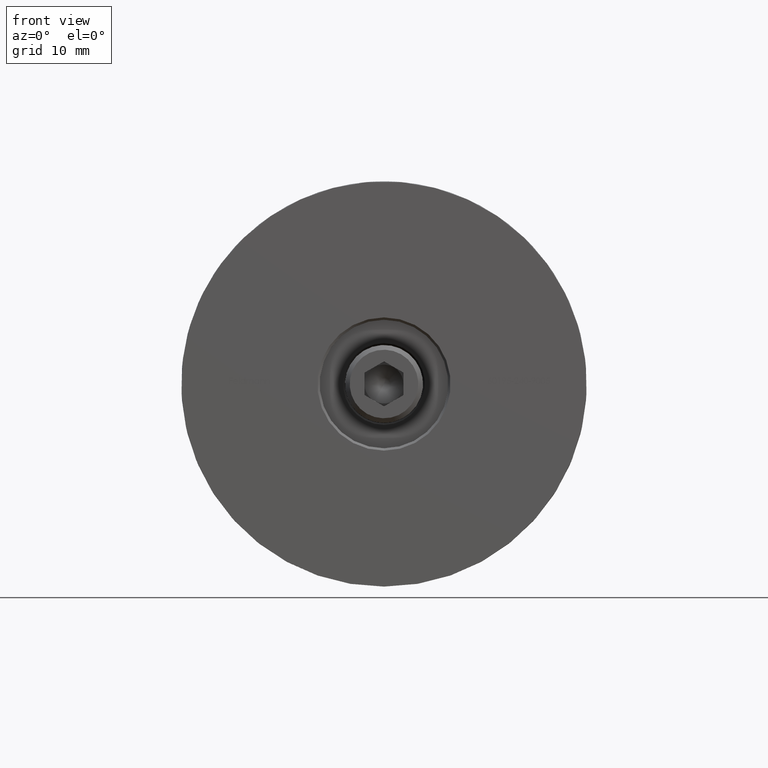
[diagram: clean part render]
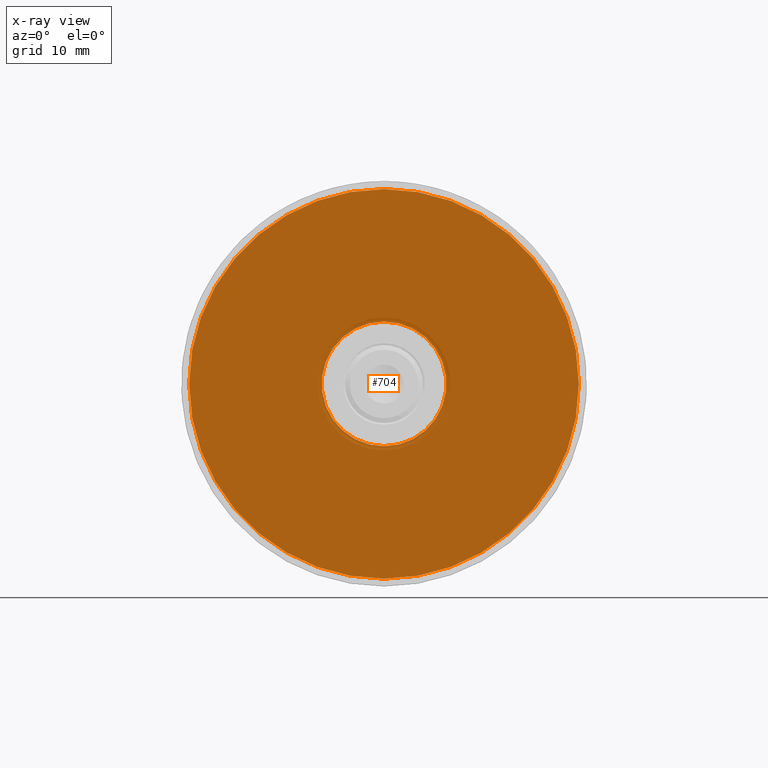
[diagram: x-ray — body ghosted, one internal face saturated and labeled with its STEP entity id]
A machine part, front view, then the same camera in x-ray: the body is ghosted and one INTERNAL B-rep face — a face not visible from any outside direction — is saturated and labeled: STEP entity #704.
In plain terms, the highlighted planar face has unit normal (0, -1, 0).
Its self-contained STEP definition (entity closure, byte-faithful):
#704 = ADVANCED_FACE ( 'NONE', ( #7446, #6558 ), #8931, .F. ) ;
#944 = AXIS2_PLACEMENT_3D ( 'NONE', #12349, #15119, #17889 ) ;
#1473 = CIRCLE ( 'NONE', #6804, 8.000000000000056843 ) ;
#1563 = EDGE_CURVE ( 'NONE', #13033, #13033, #7208, .T. ) ;
#2600 = CARTESIAN_POINT ( 'NONE',  ( 5.457486406938543352E-16, -4.000000000000000000, 25.00000000000013500 ) ) ;
#3094 = EDGE_CURVE ( 'NONE', #14125, #14125, #1473, .T. ) ;
#3900 = EDGE_LOOP ( 'NONE', ( #14150 ) ) ;
#6126 = CARTESIAN_POINT ( 'NONE',  ( 7.000000000000042633, -4.000000000000000000, 0.000000000000000000 ) ) ;
#6318 = ORIENTED_EDGE ( 'NONE', *, *, #1563, .F. ) ;
#6558 = FACE_OUTER_BOUND ( 'NONE', #8630, .T. ) ;
#6804 = AXIS2_PLACEMENT_3D ( 'NONE', #10153, #15877, #7428 ) ;
#7208 = CIRCLE ( 'NONE', #944, 25.00000000000013500 ) ;
#7428 = DIRECTION ( 'NONE',  ( 0.000000000000000000, 0.000000000000000000, 1.000000000000000000 ) ) ;
#7446 = FACE_BOUND ( 'NONE', #3900, .T. ) ;
#7560 = DIRECTION ( 'NONE',  ( 0.000000000000000000, 1.000000000000000000, 0.000000000000000000 ) ) ;
#8630 = EDGE_LOOP ( 'NONE', ( #6318 ) ) ;
#8931 = PLANE ( 'NONE',  #13453 ) ;
#8997 = DIRECTION ( 'NONE',  ( 0.000000000000000000, 0.000000000000000000, 1.000000000000000000 ) ) ;
#10153 = CARTESIAN_POINT ( 'NONE',  ( 5.457486406938543352E-16, -4.000000000000000000, 0.000000000000000000 ) ) ;
#12349 = CARTESIAN_POINT ( 'NONE',  ( 5.457486406938543352E-16, -4.000000000000000000, 0.000000000000000000 ) ) ;
#13033 = VERTEX_POINT ( 'NONE', #2600 ) ;
#13453 = AXIS2_PLACEMENT_3D ( 'NONE', #6126, #7560, #8997 ) ;
#14125 = VERTEX_POINT ( 'NONE', #15357 ) ;
#14150 = ORIENTED_EDGE ( 'NONE', *, *, #3094, .T. ) ;
#15119 = DIRECTION ( 'NONE',  ( 0.000000000000000000, 1.000000000000000000, 0.000000000000000000 ) ) ;
#15357 = CARTESIAN_POINT ( 'NONE',  ( 5.457486406938543352E-16, -4.000000000000000000, 8.000000000000056843 ) ) ;
#15877 = DIRECTION ( 'NONE',  ( 0.000000000000000000, 1.000000000000000000, 0.000000000000000000 ) ) ;
#17889 = DIRECTION ( 'NONE',  ( 0.000000000000000000, 0.000000000000000000, 1.000000000000000000 ) ) ;